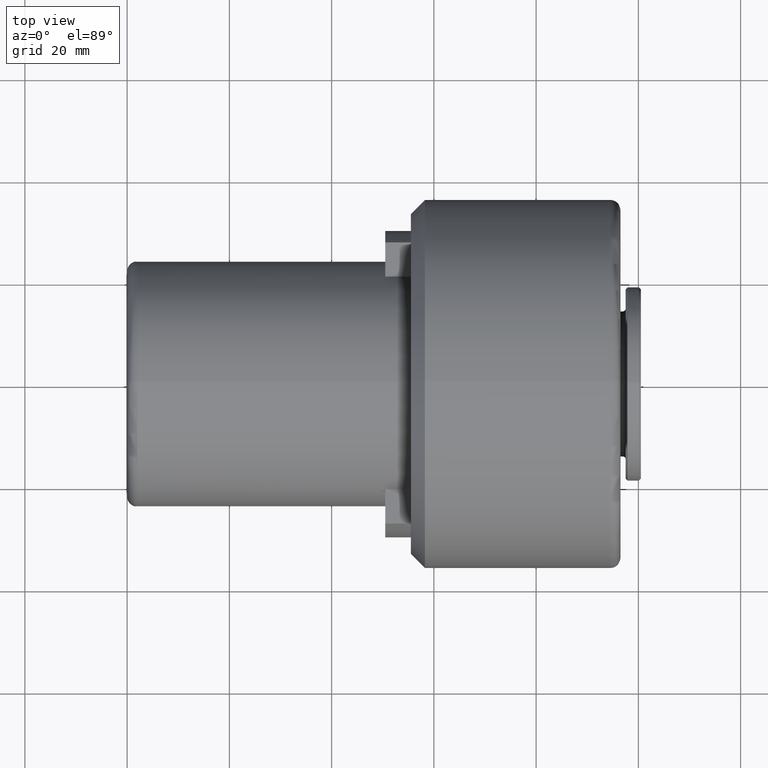
[diagram: clean part render]
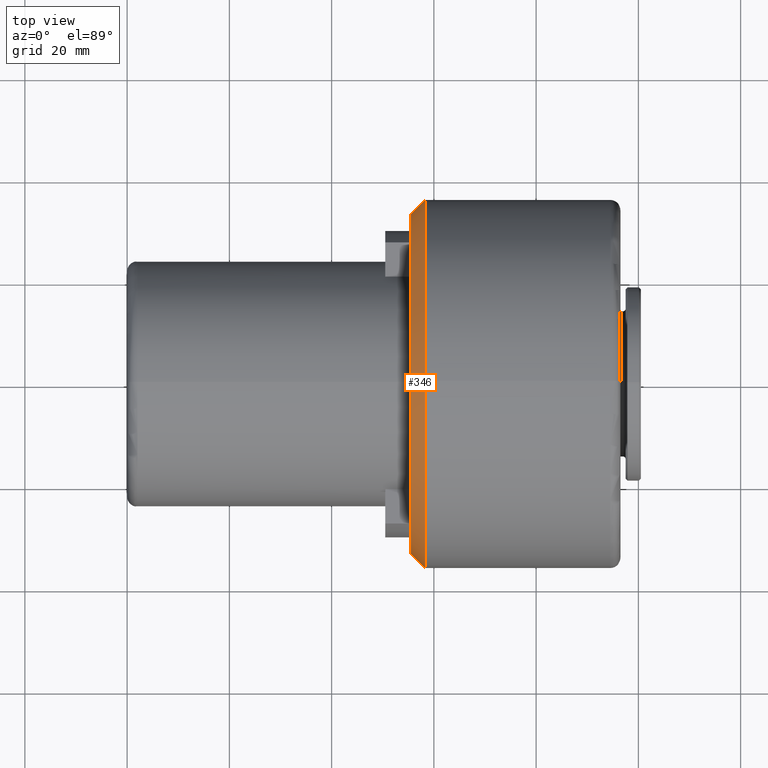
[diagram: same view with one face highlighted and labeled with its STEP entity id]
A machine part, top view. The second image highlights one B-rep face of the part: STEP entity #346.
In plain terms, the highlighted conical surface has half-angle 45 deg.
Its self-contained STEP definition (entity closure, byte-faithful):
#47 = CARTESIAN_POINT ( 'NONE',  ( 58.25000000000002100, 36.00000000000002100, 0.0000000000000000000 ) ) ;
#58 = EDGE_CURVE ( 'NONE', #707, #1327, #1285, .T. ) ;
#61 = DIRECTION ( 'NONE',  ( -1.000000000000000000, -0.0000000000000000000, -1.043442692316876300E-016 ) ) ;
#62 = VECTOR ( 'NONE', #1297, 1000.000000000000000 ) ;
#93 = DIRECTION ( 'NONE',  ( 0.7071067811865483500, 0.7071067811865468000, 0.0000000000000000000 ) ) ;
#134 = DIRECTION ( 'NONE',  ( 1.000000000000000000, 9.637352644315590300E-017, -0.0000000000000000000 ) ) ;
#216 = CARTESIAN_POINT ( 'NONE',  ( 58.25000000000001400, 0.0000000000000000000, 2.869467403871423700E-016 ) ) ;
#229 = LINE ( 'NONE', #47, #1062 ) ;
#246 = CARTESIAN_POINT ( 'NONE',  ( 58.25000000000002100, -36.00000000000002100, 4.408728476930474000E-015 ) ) ;
#253 = ORIENTED_EDGE ( 'NONE', *, *, #58, .T. ) ;
#302 = EDGE_CURVE ( 'NONE', #776, #707, #794, .T. ) ;
#309 = CARTESIAN_POINT ( 'NONE',  ( 58.25000000000000700, 0.0000000000000000000, 36.00000000000002800 ) ) ;
#323 = EDGE_CURVE ( 'NONE', #334, #1084, #440, .T. ) ;
#334 = VERTEX_POINT ( 'NONE', #1149 ) ;
#346 = ADVANCED_FACE ( 'NONE', ( #409 ), #884, .T. ) ;
#350 = ORIENTED_EDGE ( 'NONE', *, *, #1247, .T. ) ;
#357 = LINE ( 'NONE', #246, #62 ) ;
#377 = AXIS2_PLACEMENT_3D ( 'NONE', #216, #719, #976 ) ;
#409 = FACE_OUTER_BOUND ( 'NONE', #594, .T. ) ;
#411 = DIRECTION ( 'NONE',  ( 1.000000000000000000, 9.637352644315590300E-017, -0.0000000000000000000 ) ) ;
#440 = CIRCLE ( 'NONE', #1014, 33.24999999999999300 ) ;
#534 = CARTESIAN_POINT ( 'NONE',  ( 55.49999999999999300, -2.650271977186816100E-016, 0.0000000000000000000 ) ) ;
#594 = EDGE_LOOP ( 'NONE', ( #760, #350, #692, #253, #1085 ) ) ;
#648 = DIRECTION ( 'NONE',  ( 1.927470528863117600E-016, 0.0000000000000000000, -1.000000000000000000 ) ) ;
#691 = DIRECTION ( 'NONE',  ( 0.0000000000000000000, 1.000000000000000000, 0.0000000000000000000 ) ) ;
#692 = ORIENTED_EDGE ( 'NONE', *, *, #302, .T. ) ;
#707 = VERTEX_POINT ( 'NONE', #309 ) ;
#719 = DIRECTION ( 'NONE',  ( -1.000000000000000000, -0.0000000000000000000, -1.043442692316876300E-016 ) ) ;
#729 = DIRECTION ( 'NONE',  ( 0.0000000000000000000, 1.000000000000000000, 0.0000000000000000000 ) ) ;
#760 = ORIENTED_EDGE ( 'NONE', *, *, #323, .T. ) ;
#776 = VERTEX_POINT ( 'NONE', #1136 ) ;
#794 = CIRCLE ( 'NONE', #377, 36.00000000000002800 ) ;
#803 = CARTESIAN_POINT ( 'NONE',  ( 58.25000000000001400, 0.0000000000000000000, 2.869467403871423700E-016 ) ) ;
#884 = CONICAL_SURFACE ( 'NONE', #1313, 36.00000000000002100, 0.7853981633974470600 ) ;
#976 = DIRECTION ( 'NONE',  ( 1.927470528863117600E-016, 0.0000000000000000000, -1.000000000000000000 ) ) ;
#1014 = AXIS2_PLACEMENT_3D ( 'NONE', #534, #411, #729 ) ;
#1062 = VECTOR ( 'NONE', #93, 1000.000000000000000 ) ;
#1084 = VERTEX_POINT ( 'NONE', #1156 ) ;
#1085 = ORIENTED_EDGE ( 'NONE', *, *, #1090, .F. ) ;
#1090 = EDGE_CURVE ( 'NONE', #334, #1327, #229, .T. ) ;
#1136 = CARTESIAN_POINT ( 'NONE',  ( 58.25000000000001400, -36.00000000000001400, 4.408728476930473200E-015 ) ) ;
#1149 = CARTESIAN_POINT ( 'NONE',  ( 55.49999999999999300, 33.24999999999999300, 0.0000000000000000000 ) ) ;
#1156 = CARTESIAN_POINT ( 'NONE',  ( 55.49999999999999300, -33.24999999999999300, 4.240339542047711600E-015 ) ) ;
#1205 = CARTESIAN_POINT ( 'NONE',  ( 58.25000000000002100, 0.0000000000000000000, 0.0000000000000000000 ) ) ;
#1228 = AXIS2_PLACEMENT_3D ( 'NONE', #803, #61, #648 ) ;
#1247 = EDGE_CURVE ( 'NONE', #1084, #776, #357, .T. ) ;
#1285 = CIRCLE ( 'NONE', #1228, 36.00000000000002800 ) ;
#1297 = DIRECTION ( 'NONE',  ( 0.7071067811865485700, -0.7071067811865465700, 8.659560562354924200E-017 ) ) ;
#1306 = CARTESIAN_POINT ( 'NONE',  ( 58.25000000000001400, 36.00000000000001400, 0.0000000000000000000 ) ) ;
#1313 = AXIS2_PLACEMENT_3D ( 'NONE', #1205, #134, #691 ) ;
#1327 = VERTEX_POINT ( 'NONE', #1306 ) ;